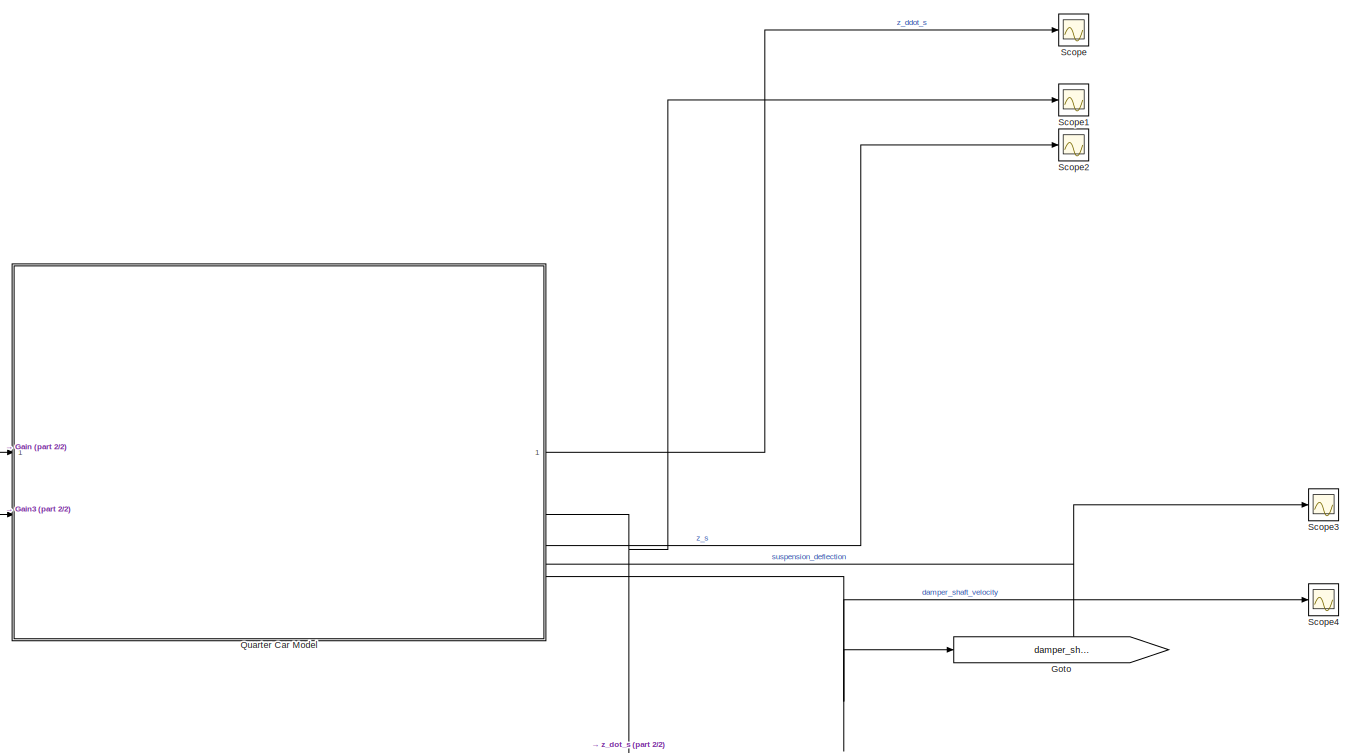
[diagram: root canvas - part 1/2, right side, full height]
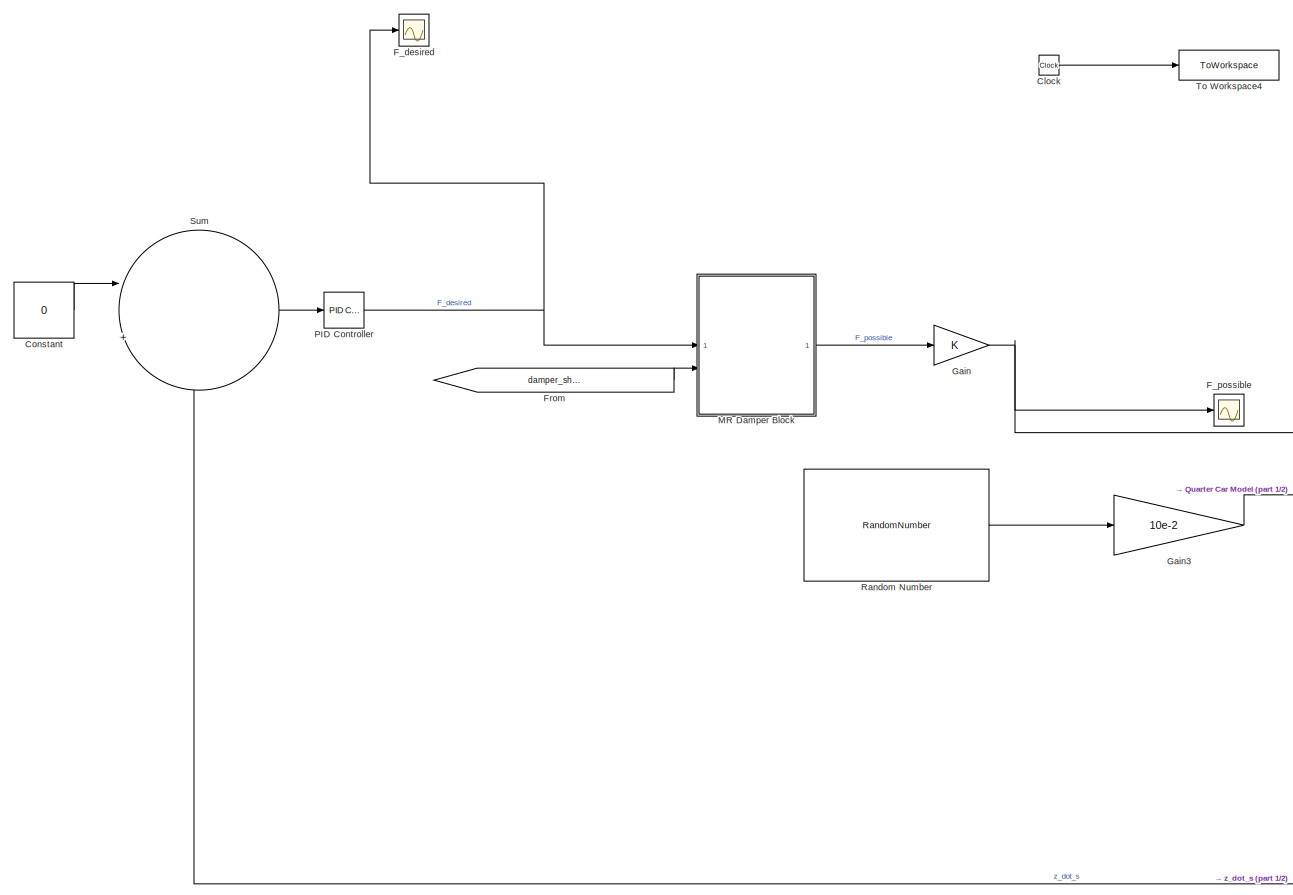
[diagram: root canvas - part 2/2, left side, full height]
MODEL slx_55efdf5b3d29
KIND model
CONFIG AbsTol = auto
CONFIG EnableMultiTasking = off
CONFIG FixedStep = auto
CONFIG MaxStep = auto
CONFIG MinStep = auto
CONFIG RelTol = 1e-3
CONFIG SampleTimeConstraint = Unconstrained
CONFIG SolverName = FixedStepAuto
CONFIG StartTime = 0.0
CONFIG StopTime = 1.0
BLOCK [Clock] Clock
  Decimation = 100
BLOCK [Constant] Constant
  Value = 0
BLOCK [Scope] F_desired
  Floating = off
  NumInputPorts = 1
  ScopeSpecificationString = Simulink.scopes.TimeScopeBlockCfg('CurrentConfiguration', extmgr.ConfigurationSet(extmgr.Configuration('Core','General UI',true),extmgr.Configuration('Core','Source UI',true),extmgr.Configuration('Sources','WiredSimulink',true,'DataLoggingVariableName','ScopeData5'),extmgr.Configuration('Visuals','Time Domain',true,'SerializedDisplays',{struct('MinYLimReal','-2582.99138','MaxYLimReal','2469.99047'...<+1468ch>
BLOCK [Scope] F_possible
  Floating = off
  NumInputPorts = 1
  ScopeSpecificationString = Simulink.scopes.TimeScopeBlockCfg('CurrentConfiguration', extmgr.ConfigurationSet(extmgr.Configuration('Core','General UI',true),extmgr.Configuration('Core','Source UI',true),extmgr.Configuration('Sources','WiredSimulink',true,'DataLoggingVariableName','ScopeData6'),extmgr.Configuration('Visuals','Time Domain',true,'SerializedDisplays',{struct('MinYLimReal','-2582.99138','MaxYLimReal','2469.99047'...<+1461ch>
BLOCK [From] From
  GotoTag = damper_shaft_velocity
BLOCK [Gain] Gain
BLOCK [Gain] Gain3
  Gain = 10e-2
BLOCK [Goto] Goto
  GotoTag = damper_shaft_velocity
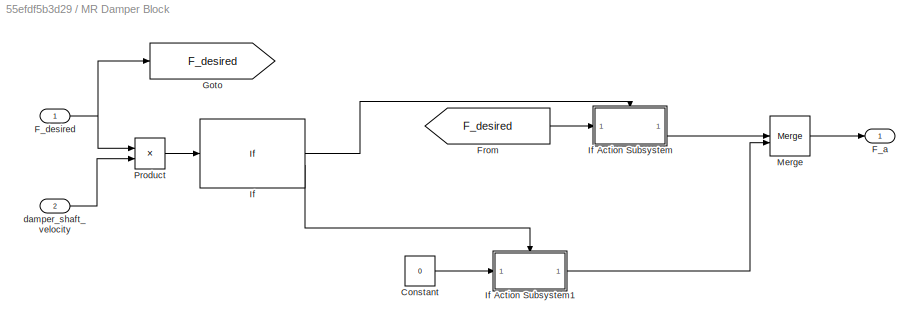
BLOCK [SubSystem] MR Damper Block
BLOCK [Constant] MR Damper Block/Constant
  Value = 0
BLOCK [Outport] MR Damper Block/F_a
BLOCK [Inport] MR Damper Block/F_desired
BLOCK [From] MR Damper Block/From
  GotoTag = F_desired
BLOCK [Goto] MR Damper Block/Goto
  GotoTag = F_desired
BLOCK [If] MR Damper Block/If
  IfExpression = u1 < 0
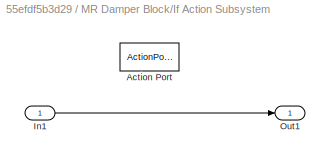
BLOCK [SubSystem] MR Damper Block/If Action Subsystem
  TreatAsAtomicUnit = on
BLOCK [ActionPort] MR Damper Block/If Action Subsystem/Action Port
  ActionPortLabel = if(u1 < 0)
BLOCK [Inport] MR Damper Block/If Action Subsystem/In1
BLOCK [Outport] MR Damper Block/If Action Subsystem/Out1
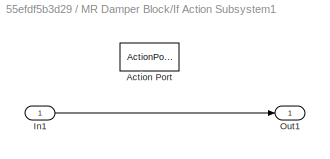
BLOCK [SubSystem] MR Damper Block/If Action Subsystem1
  TreatAsAtomicUnit = on
BLOCK [ActionPort] MR Damper Block/If Action Subsystem1/Action Port
  ActionPortLabel = else
BLOCK [Inport] MR Damper Block/If Action Subsystem1/In1
BLOCK [Outport] MR Damper Block/If Action Subsystem1/Out1
BLOCK [Merge] MR Damper Block/Merge
BLOCK [Product] MR Damper Block/Product
BLOCK [Inport] MR Damper Block/damper_shaft_velocity
  Port = 2
BLOCK [Reference] PID Controller  REF=slpidlib/PID Controller
  LibrarySourceBlock = simulink/Continuous/PID Controller
  SourceBlock = slpidlib/PID Controller
  SourceType = PID 1dof
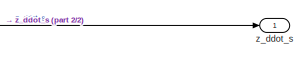
[diagram: Quarter Car Model - part 1/2, top right region]
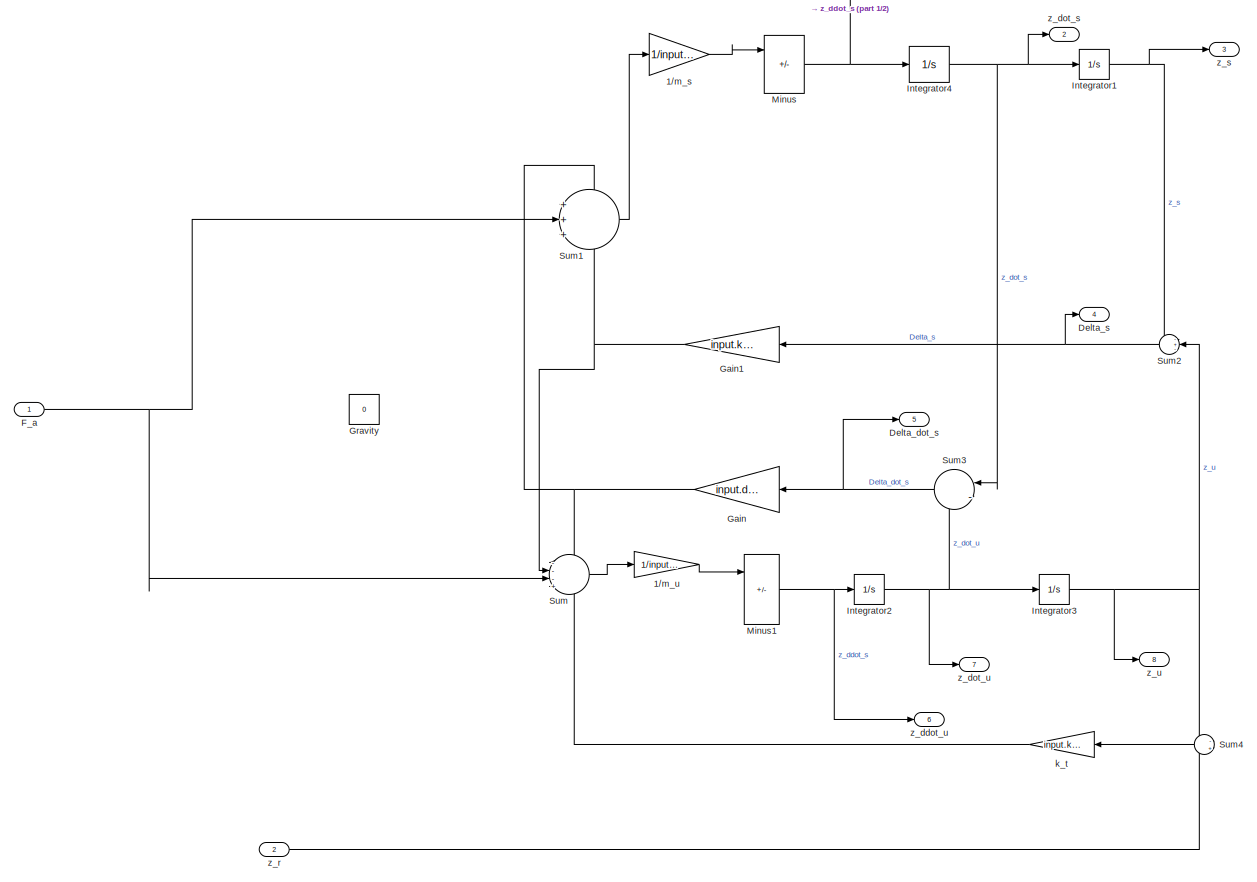
[diagram: Quarter Car Model - part 2/2, most of the canvas]
BLOCK [SubSystem] Quarter Car Model
BLOCK [Gain] Quarter Car Model/1//m_s
  Gain = 1/input.m_s
BLOCK [Gain] Quarter Car Model/1//m_u
  Gain = 1/input.m_a
BLOCK [Outport] Quarter Car Model/Delta_dot_s
  Port = 5
BLOCK [Outport] Quarter Car Model/Delta_s
  Port = 4
BLOCK [Inport] Quarter Car Model/F_a
BLOCK [Gain] Quarter Car Model/Gain
  Gain = input.d_s
  NameLocation = top
BLOCK [Gain] Quarter Car Model/Gain1
  Gain = input.k_s
  NameLocation = top
BLOCK [Constant] Quarter Car Model/Gravity
  Value = 0
BLOCK [Integrator] Quarter Car Model/Integrator1
  LowerSaturationLimit = de_s
BLOCK [Integrator] Quarter Car Model/Integrator2
BLOCK [Integrator] Quarter Car Model/Integrator3
  LowerSaturationLimit = de_a
BLOCK [Integrator] Quarter Car Model/Integrator4
BLOCK [Sum] Quarter Car Model/Minus
  IconShape = rectangular
  Inputs = +-+
BLOCK [Sum] Quarter Car Model/Minus1
  IconShape = rectangular
  Inputs = +--
BLOCK [Sum] Quarter Car Model/Sum
  Inputs = ---+
BLOCK [Sum] Quarter Car Model/Sum1
  Inputs = +++
BLOCK [Sum] Quarter Car Model/Sum2
  Inputs = -+-
  NameLocation = top
BLOCK [Sum] Quarter Car Model/Sum3
  Inputs = |-+
  NameLocation = top
BLOCK [Sum] Quarter Car Model/Sum4
  Inputs = -+
  NameLocation = top
BLOCK [Gain] Quarter Car Model/k_t
  Gain = input.k_t
  NameLocation = top
BLOCK [Outport] Quarter Car Model/z_ddot_s
BLOCK [Outport] Quarter Car Model/z_ddot_u
  Port = 6
BLOCK [Outport] Quarter Car Model/z_dot_s
  Port = 2
BLOCK [Outport] Quarter Car Model/z_dot_u
  Port = 7
BLOCK [Inport] Quarter Car Model/z_r
  Port = 2
BLOCK [Outport] Quarter Car Model/z_s
  Port = 3
BLOCK [Outport] Quarter Car Model/z_u
  Port = 8
BLOCK [RandomNumber] Random Number
  SampleTime = 0.001
BLOCK [Scope] Scope
  Floating = off
  NumInputPorts = 1
  ScopeSpecificationString = Simulink.scopes.TimeScopeBlockCfg('CurrentConfiguration', extmgr.ConfigurationSet(extmgr.Configuration('Core','General UI',true),extmgr.Configuration('Core','Source UI',true),extmgr.Configuration('Sources','WiredSimulink',true),extmgr.Configuration('Visuals','Time Domain',true,'SerializedDisplays',{struct('MinYLimReal','-3.70696','MaxYLimReal','3.64093','YLabelReal','','MinYLimMag','0.00000','MaxY...<+1383ch>
BLOCK [Scope] Scope1
  Floating = off
  NumInputPorts = 1
  ScopeSpecificationString = Simulink.scopes.TimeScopeBlockCfg('CurrentConfiguration', extmgr.ConfigurationSet(extmgr.Configuration('Core','General UI',true),extmgr.Configuration('Core','Source UI',true),extmgr.Configuration('Sources','WiredSimulink',true,'DataLoggingVariableName','ScopeData1'),extmgr.Configuration('Visuals','Time Domain',true,'SerializedDisplays',{struct('MinYLimReal','-0.05738','MaxYLimReal','0.06723','YLab...<+1426ch>
BLOCK [Scope] Scope2
  Floating = off
  NumInputPorts = 1
  ScopeSpecificationString = Simulink.scopes.TimeScopeBlockCfg('CurrentConfiguration', extmgr.ConfigurationSet(extmgr.Configuration('Core','General UI',true),extmgr.Configuration('Core','Source UI',true),extmgr.Configuration('Sources','WiredSimulink',true,'DataLoggingVariableName','ScopeData2'),extmgr.Configuration('Visuals','Time Domain',true),extmgr.Configuration('Tools','Plot Navigation',true),extmgr.Configuration('Tools',...<+40ch>
BLOCK [Scope] Scope3
  Floating = off
  NumInputPorts = 1
  ScopeSpecificationString = Simulink.scopes.TimeScopeBlockCfg('CurrentConfiguration', extmgr.ConfigurationSet(extmgr.Configuration('Core','General UI',true),extmgr.Configuration('Core','Source UI',true),extmgr.Configuration('Sources','WiredSimulink',true,'DataLoggingVariableName','ScopeData3'),extmgr.Configuration('Visuals','Time Domain',true),extmgr.Configuration('Tools','Plot Navigation',true),extmgr.Configuration('Tools',...<+40ch>
BLOCK [Scope] Scope4
  Floating = off
  NumInputPorts = 1
  ScopeSpecificationString = Simulink.scopes.TimeScopeBlockCfg('CurrentConfiguration', extmgr.ConfigurationSet(extmgr.Configuration('Core','General UI',true),extmgr.Configuration('Core','Source UI',true),extmgr.Configuration('Sources','WiredSimulink',true,'DataLoggingVariableName','ScopeData4'),extmgr.Configuration('Visuals','Time Domain',true),extmgr.Configuration('Tools','Plot Navigation',true),extmgr.Configuration('Tools',...<+40ch>
BLOCK [Sum] Sum
  Inputs = |+-
BLOCK [ToWorkspace] To Workspace4
  MaxDataPoints = inf
  SampleTime = -1
  VariableName = time
LINE Clock:1 -> To Workspace4:1
LINE Constant:1 -> Sum:1
LINE From:1 -> MR Damper Block:2
LINE Gain3:1 -> Quarter Car Model:2
NET Gain:1 -> F_possible:1, Quarter Car Model:1
LINE MR Damper Block/Constant:1 -> MR Damper Block/If Action Subsystem1:1
NET MR Damper Block/F_desired:1 -> MR Damper Block/Goto:1, MR Damper Block/Product:1
LINE MR Damper Block/From:1 -> MR Damper Block/If Action Subsystem:1
LINE MR Damper Block/If Action Subsystem/In1:1 -> MR Damper Block/If Action Subsystem/Out1:1
LINE MR Damper Block/If Action Subsystem1/In1:1 -> MR Damper Block/If Action Subsystem1/Out1:1
LINE MR Damper Block/If Action Subsystem1:1 -> MR Damper Block/Merge:2
LINE MR Damper Block/If Action Subsystem:1 -> MR Damper Block/Merge:1
LINE MR Damper Block/If:1 -> MR Damper Block/If Action Subsystem:ifaction
LINE MR Damper Block/If:2 -> MR Damper Block/If Action Subsystem1:ifaction
LINE MR Damper Block/Merge:1 -> MR Damper Block/F_a:1
LINE MR Damper Block/Product:1 -> MR Damper Block/If:1
LINE MR Damper Block/damper_shaft_velocity:1 -> MR Damper Block/Product:2
LINE MR Damper Block:1 -> Gain:1
NET PID Controller:1 -> F_desired:1, MR Damper Block:1
LINE Quarter Car Model/1//m_s:1 -> Quarter Car Model/Minus:1
LINE Quarter Car Model/1//m_u:1 -> Quarter Car Model/Minus1:1
NET Quarter Car Model/F_a:1 -> Quarter Car Model/Sum1:2, Quarter Car Model/Sum:3
NET Quarter Car Model/Gain1:1 -> Quarter Car Model/Sum1:3, Quarter Car Model/Sum:2
NET Quarter Car Model/Gain:1 -> Quarter Car Model/Sum1:1, Quarter Car Model/Sum:1
NET Quarter Car Model/Integrator1:1 -> Quarter Car Model/Sum2:1, Quarter Car Model/z_s:1
NET Quarter Car Model/Integrator2:1 -> Quarter Car Model/Integrator3:1, Quarter Car Model/Sum3:2, Quarter Car Model/z_dot_u:1
NET Quarter Car Model/Integrator3:1 -> Quarter Car Model/Sum2:2, Quarter Car Model/Sum4:1, Quarter Car Model/z_u:1
NET Quarter Car Model/Integrator4:1 -> Quarter Car Model/Integrator1:1, Quarter Car Model/Sum3:1, Quarter Car Model/z_dot_s:1
NET Quarter Car Model/Minus1:1 -> Quarter Car Model/Integrator2:1, Quarter Car Model/z_ddot_u:1
NET Quarter Car Model/Minus:1 -> Quarter Car Model/Integrator4:1, Quarter Car Model/z_ddot_s:1
LINE Quarter Car Model/Sum1:1 -> Quarter Car Model/1//m_s:1
NET Quarter Car Model/Sum2:1 -> Quarter Car Model/Delta_s:1, Quarter Car Model/Gain1:1
NET Quarter Car Model/Sum3:1 -> Quarter Car Model/Delta_dot_s:1, Quarter Car Model/Gain:1
LINE Quarter Car Model/Sum4:1 -> Quarter Car Model/k_t:1
LINE Quarter Car Model/Sum:1 -> Quarter Car Model/1//m_u:1
LINE Quarter Car Model/k_t:1 -> Quarter Car Model/Sum:4
LINE Quarter Car Model/z_r:1 -> Quarter Car Model/Sum4:2
LINE Quarter Car Model:1 -> Scope:1
NET Quarter Car Model:2 -> Scope1:1, Sum:2
LINE Quarter Car Model:3 -> Scope2:1
LINE Quarter Car Model:4 -> Scope3:1
NET Quarter Car Model:5 -> Goto:1, Scope4:1
LINE Random Number:1 -> Gain3:1
LINE Sum:1 -> PID Controller:1
note: NET lines group one-source signal fan-out (src -> all destinations, sorted); 1:1 wires keep LINE
